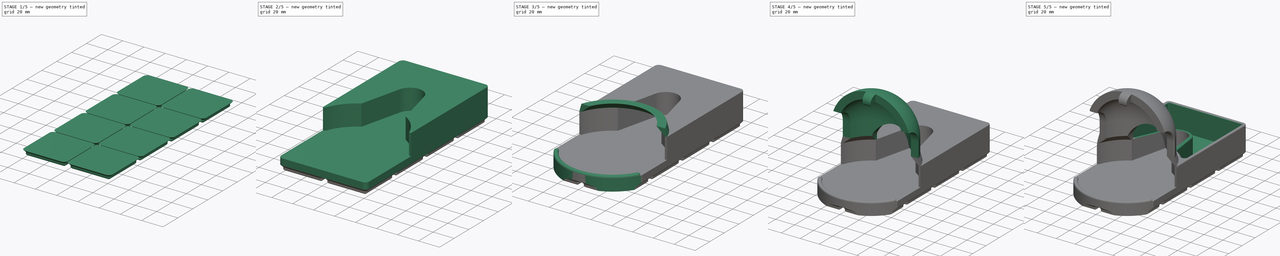
[diagram: build sequence overview — one tinted view per stage of 5, left to right]
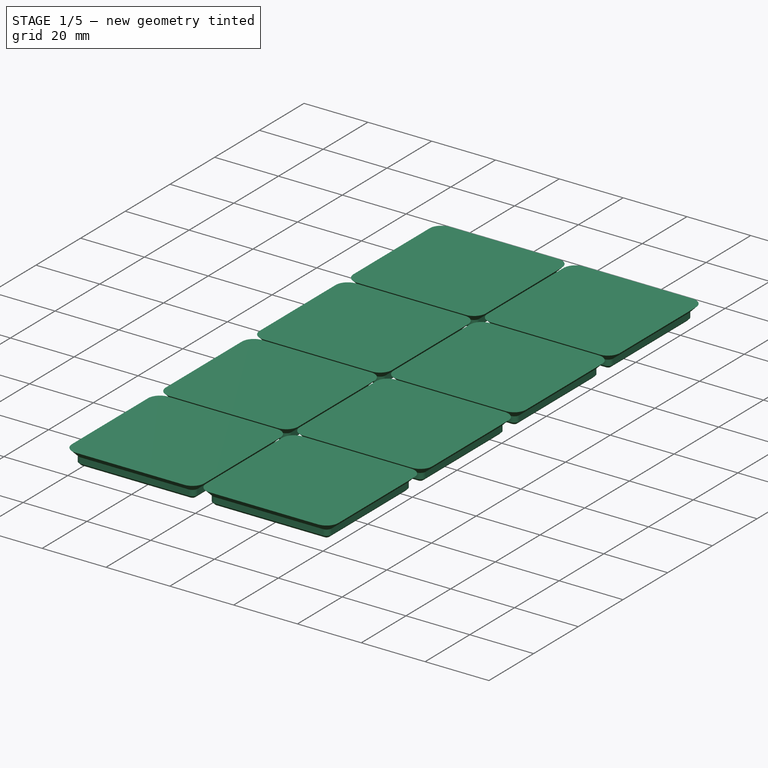
[diagram: stage 1 of 5 — iso view after this stage's code; geometry added in this stage tinted green]
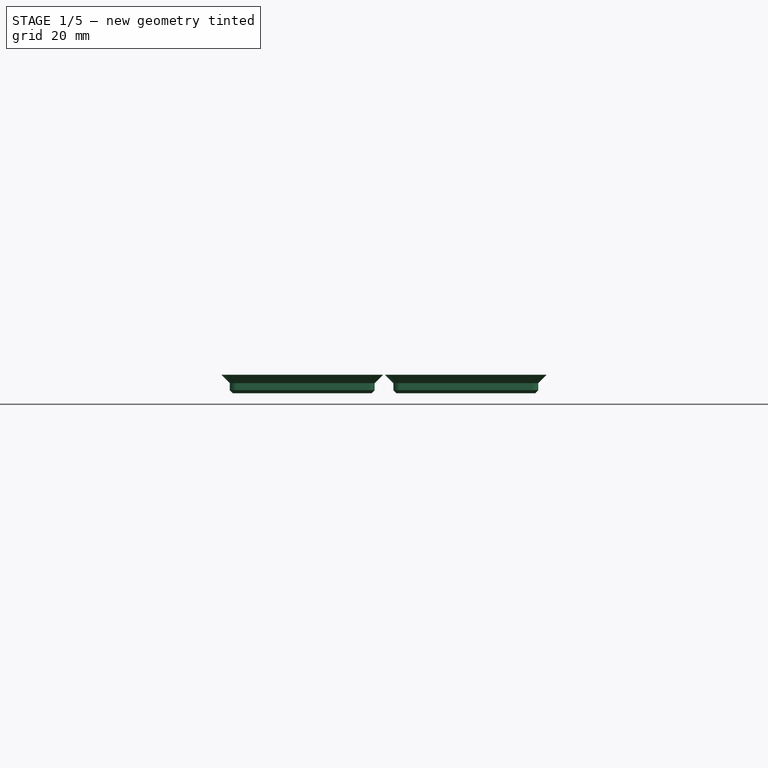
[diagram: stage 1 of 5 — front view after this stage's code; geometry added in this stage tinted green]
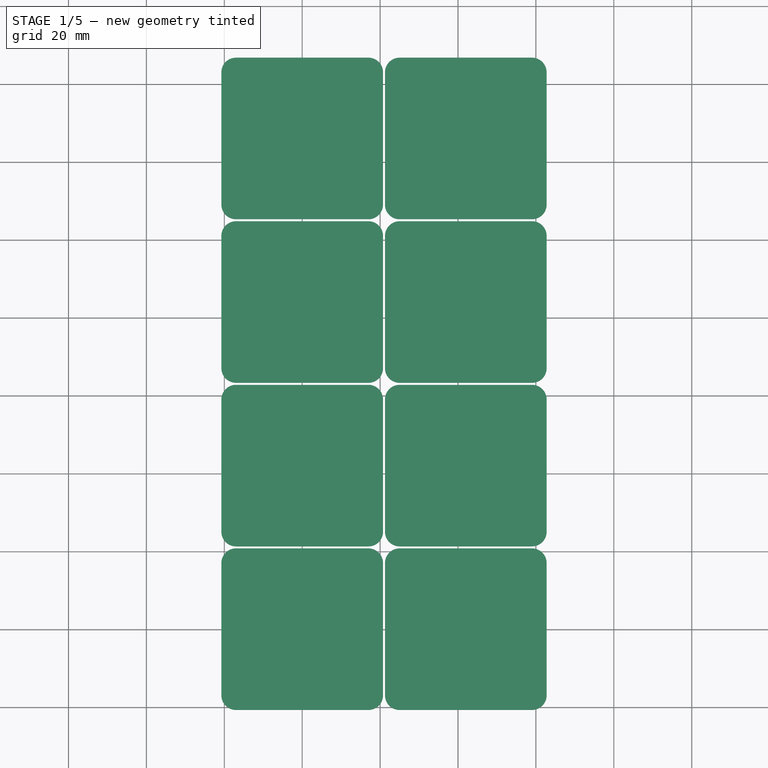
[diagram: stage 1 of 5 — top view after this stage's code; geometry added in this stage tinted green]
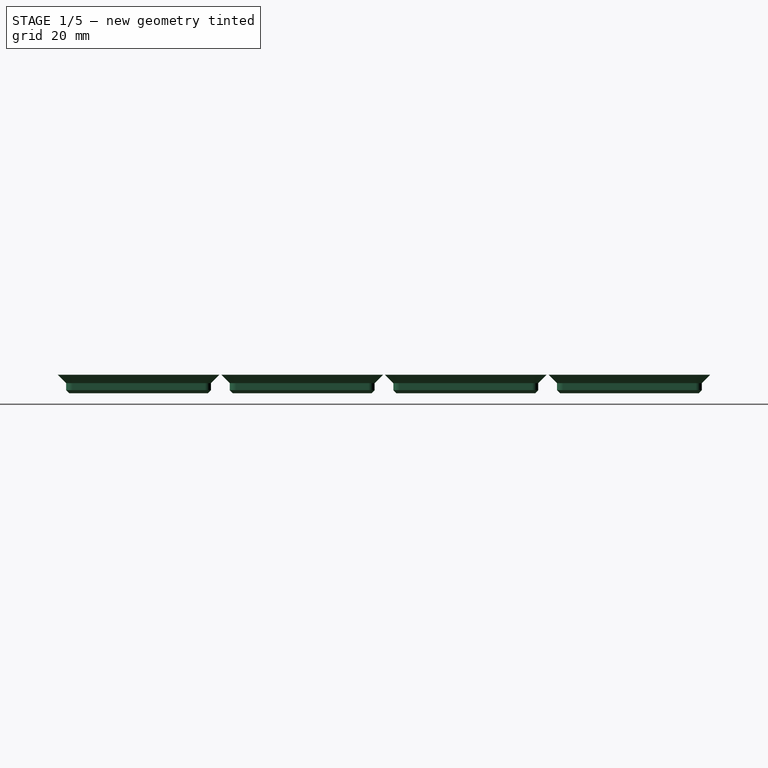
[diagram: stage 1 of 5 — right view after this stage's code; geometry added in this stage tinted green]
FCSTD DOCUMENT  (FreeCAD 1.1R20260223 (Git shallow))
Label: Gridfinity Hakko Iron stand
License: Creative Commons Attribution 4.0
LicenseURL: https://creativecommons.org/licenses/by/4.0/
objects: Sketcher::SketchObject×14, PartDesign::Pad×7, PartDesign::Pocket×4, Part::Part2DObjectPython×3, PartDesign::Fillet×3, Part::DatumPlane×2, PartDesign::Revolution×2, App::Point×1, PartDesign::FeaturePython×1, PartDesign::Hole×1, PartDesign::Chamfer×1, PartDesign::AdditiveLoft×1, PartDesign::Body×1
note: 91 computed .brp shape members not serialized (recipe doc carries the construction recipe); baked Part::Feature solids carry a one-line shape summary decoded from their .brp

FEATURE [App::Point] Origin002  label="Origin"
  Role = Origin
FEATURE [Sketcher::SketchObject] Sketch006
  ArcFitTolerance = 1e-06
  AttachmentSupport = -> [Origin]
  ExternalTypes = [0]
  FullyConstrained = true
  MakeInternals = false
  MapMode = 5
  expr: Constraints[6] = href(<<Tray>>.Depth) * 42 - 16
  expr: Constraints[8] = href(<<Tray>>.Width) * 42 - 16
  sketch-geometry (4):
    g0: Circle CenterX=13 CenterY=-13 CenterZ=0 NormalX=0 NormalY=0 NormalZ=1 AngleXU=0 Radius=3.25
    g1: Circle CenterX=-13 CenterY=139 CenterZ=0 NormalX=0 NormalY=0 NormalZ=1 AngleXU=0 Radius=3.25
    g2: Circle CenterX=55 CenterY=139 CenterZ=0 NormalX=0 NormalY=0 NormalZ=1 AngleXU=0 Radius=3.25
    g3: Circle CenterX=29 CenterY=-13 CenterZ=0 NormalX=0 NormalY=0 NormalZ=1 AngleXU=0 Radius=3.25
  constraints (12):
    c: Equal(g2,g1)
    c: Equal(g1,g0)
    c: Equal(g0,g3)
    c: Diameter(g0) = 6.5
    c: Horizontal(g1,g2)
    c: Horizontal(g0,g3)
    c: DistanceY(g0,g1) = 152
    c: DistanceY(g0,g-1) = 13
    c: DistanceX(g1,g2) = 68
    c: DistanceX(g1,g0) = 26
    c: DistanceX(g3,g2) = 26
    c: DistanceX(g1,g-1) = 13
FEATURE [Sketcher::SketchObject] Sketch
  ArcFitTolerance = 1e-06
  AttachmentSupport = -> [XY_Plane]
  ExternalTypes = [0]
  FullyConstrained = true
  MakeInternals = false
  MapMode = 5
  sketch-geometry (10):
    g0: LineSegment StartX=-17.8 StartY=17 StartZ=0 EndX=-17.8 EndY=-17 EndZ=0
    g1: LineSegment StartX=-17 StartY=-17.8 StartZ=0 EndX=17 EndY=-17.8 EndZ=0
    g2: LineSegment StartX=17.8 StartY=-17 StartZ=0 EndX=17.8 EndY=17 EndZ=0
    g3: LineSegment StartX=17 StartY=17.8 StartZ=0 EndX=-17 EndY=17.8 EndZ=0
    g4: ArcOfCircle CenterX=-17 CenterY=17 CenterZ=0 NormalX=0 NormalY=0 NormalZ=1 AngleXU=0 Radius=0.8 StartAngle=1.5708 EndAngle=3.14159
    g5: ArcOfCircle CenterX=-17 CenterY=-17 CenterZ=0 NormalX=0 NormalY=0 NormalZ=1 AngleXU=0 Radius=0.8 StartAngle=3.14159 EndAngle=4.71239
    g6: ArcOfCircle CenterX=17 CenterY=-17 CenterZ=0 NormalX=0 NormalY=0 NormalZ=1 AngleXU=0 Radius=0.8 StartAngle=4.71239 EndAngle=6.28319
    g7: ArcOfCircle CenterX=17 CenterY=17 CenterZ=0 NormalX=0 NormalY=0 NormalZ=1 AngleXU=0 Radius=0.8 StartAngle=9.76e-14 EndAngle=1.5708
    g8: GeomPoint [constr] X=-17.8 Y=17.8 Z=0
    g9: GeomPoint [constr] X=17.8 Y=-17.8 Z=0
  constraints (23):
    c: Tangent(g0,g4) = -1.5708
    c: Tangent(g0,g5) = -1.5708
    c: Tangent(g1,g5) = -1.5708
    c: Tangent(g1,g6) = -1.5708
    c: Tangent(g2,g6) = -1.5708
    c: Tangent(g2,g7) = -1.5708
    c: Tangent(g3,g7) = -1.5708
    c: Tangent(g3,g4) = -1.5708
    c: Vertical(g0)
    c: Vertical(g2)
    c: Horizontal(g1)
    c: Horizontal(g3)
    c: Equal(g4,g5)
    c: Equal(g5,g6)
    c: Equal(g6,g7)
    c: PointOnObject(g8,g0)
    c: PointOnObject(g8,g3)
    c: PointOnObject(g9,g1)
    c: PointOnObject(g9,g2)
    c: Symmetric(g8,g9,g-1)
    c: Equal(g3,g2)
    c: DistanceY(g9,g8) = 35.6
    c: Diameter(g5) = 1.6
FEATURE [PartDesign::Pad] Pad  label="Base pad 1"
  Direction = (0,0,1)
  Length = 0.8
  Length2 = 10
  Profile = -> Sketch
  ReferenceAxis = -> Sketch [N_Axis]
  SideType = 0
  Suppressed = false
  TaperAngle = 45
  Type = 0
  Type2 = 0
FEATURE [PartDesign::Pad] Pad001  label="Base pad 2"
  BaseFeature = -> Pad
  Direction = (0,0,1)
  Length = 1.8
  Length2 = 10
  Profile = -> Pad [Edge3,Edge24,Edge22,Edge19,Edge16,Edge13,Edge10,Edge7]
  SideType = 0
  Suppressed = false
  Type = 0
  Type2 = 0
FEATURE [PartDesign::Pad] Pad002  label="Base pad 3"
  BaseFeature = -> Pad001
  Direction = (0,0,1)
  Length = 2.15
  Length2 = 10
  Profile = -> Pad001 [Edge16,Edge31,Edge32,Edge33,Edge34,Edge35,Edge36,Edge29]
  SideType = 0
  Suppressed = false
  TaperAngle = 45
  Type = 0
  Type2 = 0
FEATURE [Sketcher::SketchObject] Sketch001
  ArcFitTolerance = 1e-06
  AttachmentSupport = -> [Pad002]
  ExternalTypes = [0]
  FullyConstrained = true
  MakeInternals = false
  MapMode = 5
  Placement = pos=(0,0,4.75) rot=(0,0,1;0rad)
  expr: Constraints[23] = href(<<Tray>>.Width) * 42
  expr: Constraints[24] = href(<<Tray>>.Depth) * 42
  sketch-geometry (8):
    g0: ArcOfCircle CenterX=-17 CenterY=-17 CenterZ=0 NormalX=0 NormalY=0 NormalZ=1 AngleXU=0 Radius=4 StartAngle=3.14159 EndAngle=4.71239
    g1: LineSegment StartX=-21 StartY=-17 StartZ=0 EndX=-21 EndY=143 EndZ=0
    g2: LineSegment StartX=-17 StartY=-21 StartZ=0 EndX=59 EndY=-21 EndZ=0
    g3: ArcOfCircle CenterX=-17 CenterY=143 CenterZ=0 NormalX=0 NormalY=0 NormalZ=1 AngleXU=0 Radius=4 StartAngle=1.5708 EndAngle=3.14159
    g4: ArcOfCircle CenterX=59 CenterY=-17 CenterZ=0 NormalX=0 NormalY=0 NormalZ=1 AngleXU=0 Radius=4 StartAngle=4.71239 EndAngle=6.28319
    g5: LineSegment StartX=-17 StartY=147 StartZ=0 EndX=59 EndY=147 EndZ=0
    g6: ArcOfCircle CenterX=59 CenterY=143 CenterZ=0 NormalX=0 NormalY=0 NormalZ=1 AngleXU=0 Radius=4 StartAngle=0 EndAngle=1.5708
    g7: LineSegment StartX=63 StartY=143 StartZ=0 EndX=63 EndY=-17 EndZ=0
  constraints (28):
    c: Vertical(g0,g0)
    c: Horizontal(g0,g0)
    c: Coincident(g1,g0)
    c: Vertical(g1)
    c: Coincident(g2,g0)
    c: Horizontal(g2)
    c: Coincident(g3,g1)
    c: Coincident(g4,g2)
    c: Vertical(g4,g2)
    c: Horizontal(g4,g4)
    c: Horizontal(g1,g3)
    c: Vertical(g3,g3)
    c: Equal(g0,g3)
    c: Equal(g0,g4)
    c: Coincident(g5,g3)
    c: Horizontal(g5)
    c: Vertical(g5,g2)
    c: Coincident(g6,g5)
    c: Vertical(g5,g6)
    c: Horizontal(g6,g6)
    c: Coincident(g7,g6)
    c: Coincident(g7,g4)
    c: Equal(g0,g6)
    c: DistanceX(g0,g4) = 84
    c: DistanceY(g2,g5) = 168
    c: DistanceX(g0,g-1) = 21
    c: DistanceY(g0,g-1) = 21
    c: Radius(g0) = 4
FEATURE [Part::Part2DObjectPython] LinearArray  label="LinearArrayX"  # Draft 2D object (typed FeaturePython)
  Alignment = 0
  AttacherType = Attacher::AttachEngine3D
  CellStart = A1
  Count = 2
  Dir = (1,0,0)
  DirIsDriven = true
  DistributionLaw = 0
  DrivenProperty = 1
  EndInclusive = true
  ExposePlacement = false
  GeneratorMode = 1
  Link = -> Pad002
  LinkSubelement = Edge6
  MarkerShape = 1
  MarkerSize = 5
  NumElements = 2
  OrientMode = 1
  Point = (-17,-17.8,0)
  PointIsDriven = true
  Reverse = false
  SpanEnd = 34
  SpanStart = 0
  Step = 42
  SubLink = -> Pad002 [Edge6]
  Type = lattice2LinearArray.LinearArray
  VSGVersion = 1
  Values = 0.0 | 42.0
  ValuesSource = 2
  isLattice = 1
  expr: Count = href(<<Tray>>.Width)
FEATURE [Part::Part2DObjectPython] LinearArray001  label="LinearArrayY"  # Draft 2D object (typed FeaturePython)
  Alignment = 0
  AttacherType = Attacher::AttachEngine3D
  CellStart = A1
  Count = 4
  Dir = (0,1,0)
  DirIsDriven = true
  DistributionLaw = 0
  DrivenProperty = 1
  EndInclusive = true
  ExposePlacement = false
  GeneratorMode = 1
  Link = -> Pad002
  LinkSubelement = Edge1
  MarkerShape = 1
  MarkerSize = 5
  NumElements = 4
  OrientMode = 1
  Point = (-17.8,-17,0)
  PointIsDriven = true
  Reverse = true
  SpanEnd = 34
  SpanStart = 0
  Step = 42
  SubLink = -> Pad002 [Edge1]
  Type = lattice2LinearArray.LinearArray
  VSGVersion = 1
  Values = 0.0 | 42.0 | 84.0 | 126.0
  ValuesSource = 2
  isLattice = 1
  expr: Count = href(<<Tray>>.Depth)
FEATURE [Part::Part2DObjectPython] Populate  label="Gridfinity array"  # Draft 2D object (typed FeaturePython)
  AttacherType = Attacher::AttachEngine3D
  Copying = 0
  ExposePlacement = false
  MarkerShape = 1
  MarkerSize = 5
  NumElements = 8
  Object = -> LinearArray
  OutputCompounding = 0
  PlacementsTo = -> LinearArray001
  Referencing = 1
  Type = lattice2PopulateCopies.LatticePopulateCopies
  isLattice = 1
FEATURE [PartDesign::FeaturePython] LatticePattern  label="Base array"  # WARN: FeaturePython — macro-defined, semantics opaque (R4)
  AllowBaseFeature = true
  BaseFeature = -> Pad002
  Debug = false
  FeaturesToCopy = -> [Pad002,Pad,Pad001]
  IgnoreUnsupported = false
  PlacementsTo = -> Populate
  Referencing = 1
  Selfintersections = false
  SignOverride = 0
  SkipFirstInBody = false
  Suppressed = false
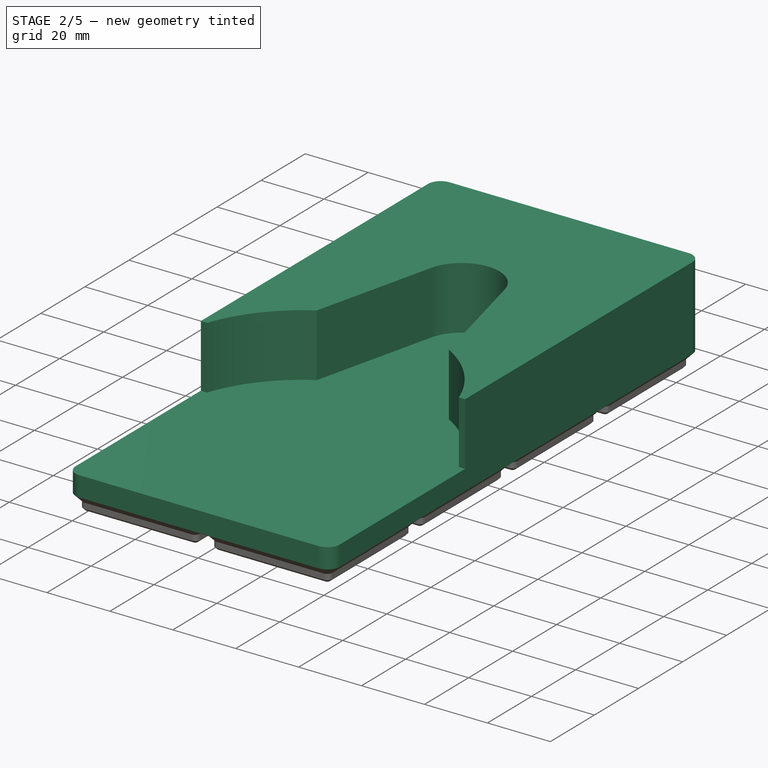
[diagram: stage 2 of 5 — iso view after this stage's code; geometry added in this stage tinted green]
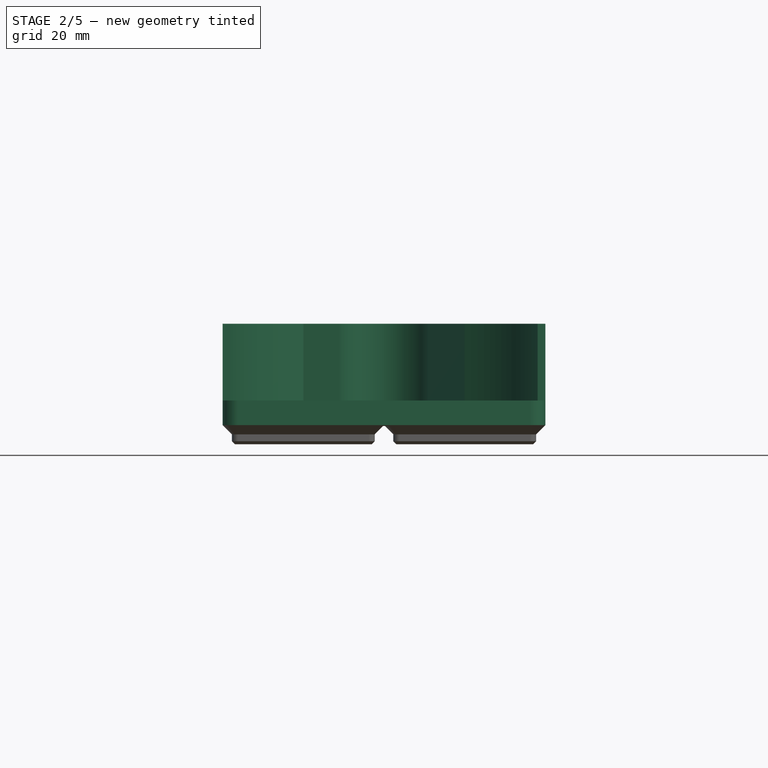
[diagram: stage 2 of 5 — front view after this stage's code; geometry added in this stage tinted green]
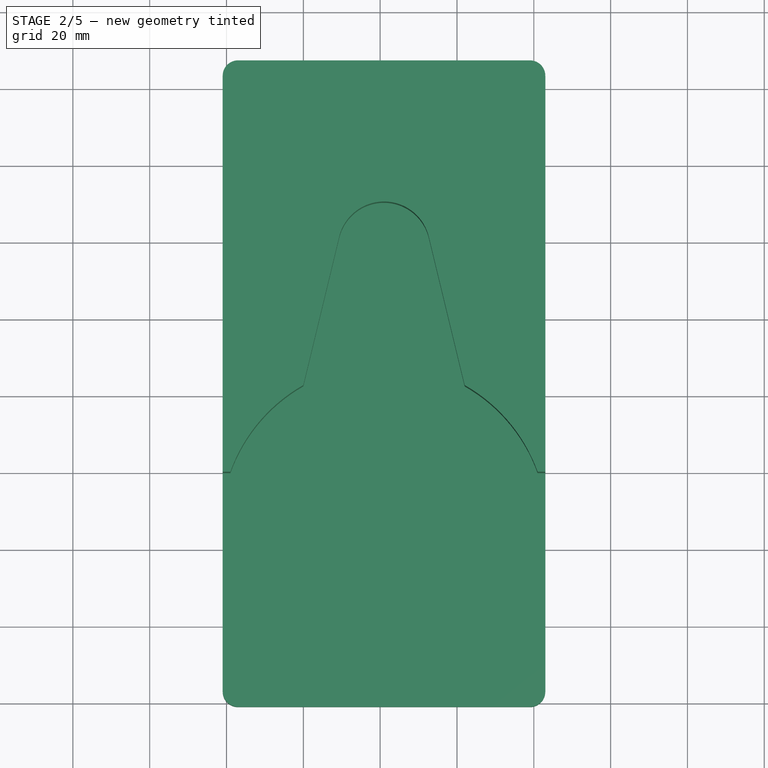
[diagram: stage 2 of 5 — top view after this stage's code; geometry added in this stage tinted green]
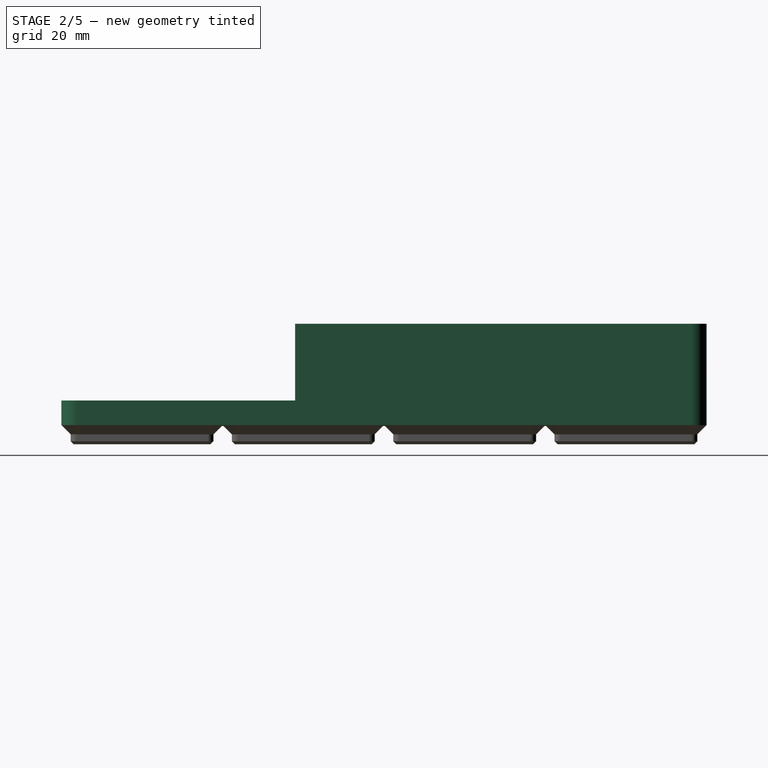
[diagram: stage 2 of 5 — right view after this stage's code; geometry added in this stage tinted green]
FEATURE [PartDesign::Pad] Pad003  label="Tray pad"
  BaseFeature = -> LatticePattern
  Direction = (0,0,1)
  Length = 6.65
  Length2 = 10
  Profile = -> Sketch001
  ReferenceAxis = -> Sketch001 [N_Axis]
  Refine = true
  SideType = 0
  Suppressed = false
  Type = 0
  Type2 = 0
  expr: Length = href(<<Tray>>.Height) * 7 - 0.35
FEATURE [PartDesign::Hole] Hole  label="Magnet holes"
  BaseFeature = -> Pad003
  BaseProfileType = 7
  CustomThreadClearance = 0
  Depth = 2
  DepthType = 0
  Diameter = 6.5
  DrillForDepth = false
  DrillPoint = 1
  DrillPointAngle = 90
  HoleCutCountersinkAngle = 90
  HoleCutCustomValues = false
  HoleCutDepth = 0
  HoleCutDiameter = 0
  HoleCutType = 0
  ModelThread = false
  Profile = -> Sketch006
  Refine = true
  Reversed = true
  Suppressed = false
  Tapered = false
  TaperedAngle = 90
  ThreadClass = 0
  ThreadDepth = 2
  ThreadDepthType = 0
  ThreadDiameter = 6.5
  ThreadDirection = 0
  ThreadFit = 0
  ThreadSize = 0
  ThreadType = 0
  Threaded = false
  UseCustomThreadClearance = false
FEATURE [PartDesign::Chamfer] Chamfer001  label="Base chamfer"
  Angle = 45
  Base = -> Hole [Edge14]
  BaseFeature = -> Hole
  ChamferType = 0
  FlipDirection = false
  Refine = true
  Size = 0.249
  Size2 = 1
  SupportTransform = false
  Suppressed = false
  UseAllEdges = false
FEATURE [Sketcher::SketchObject] Sketch007
  ArcFitTolerance = 1e-06
  AttachmentSupport = -> [Chamfer001]
  ExternalGeometry = -> [Chamfer001]
  ExternalTypes = [0,0,0,0]
  FullyConstrained = true
  MakeInternals = false
  MapMode = 5
  Placement = pos=(0,0,11.4) rot=(0,0,1;0rad)
  sketch-geometry (14):
    g0: Circle [constr] CenterX=21 CenterY=25.5 CenterZ=0 NormalX=0 NormalY=0 NormalZ=1 AngleXU=0 Radius=42.5
    g1: GeomPoint [constr] X=21 Y=-21 Z=0
    g2: LineSegment StartX=-3.6e-15 StartY=62.4493 StartZ=0 EndX=9.33597 EndY=101.07 EndZ=0
    g3: LineSegment StartX=42 StartY=62.4493 StartZ=0 EndX=32.664 EndY=101.07 EndZ=0
    g4: ArcOfCircle CenterX=21 CenterY=98.25 CenterZ=0 NormalX=0 NormalY=0 NormalZ=1 AngleXU=0 Radius=12 StartAngle=0.237187 EndAngle=2.90441
    g5: LineSegment [constr] StartX=21 StartY=98.25 StartZ=0 EndX=21 EndY=25.5 EndZ=0
    g6: LineSegment StartX=63 StartY=143 StartZ=0 EndX=63 EndY=39.8614 EndZ=0
    g7: LineSegment StartX=-21 StartY=143 StartZ=0 EndX=-21 EndY=39.8614 EndZ=0
    g8: ArcOfCircle CenterX=21 CenterY=25.5 CenterZ=0 NormalX=0 NormalY=0 NormalZ=1 AngleXU=0 Radius=42.5 StartAngle=2.08762 EndAngle=2.79689
    g9: ArcOfCircle CenterX=21 CenterY=25.5 CenterZ=0 NormalX=0 NormalY=0 NormalZ=1 AngleXU=0 Radius=42.5 StartAngle=0.344701 EndAngle=1.05398
    g10: GeomPoint [constr] X=21 Y=110.25 Z=0
    g11: GeomPoint [constr] X=21 Y=-17 Z=0
    g12: LineSegment StartX=-21 StartY=39.8614 StartZ=0 EndX=-19 EndY=39.8614 EndZ=0
    g13: LineSegment StartX=61 StartY=39.8614 StartZ=0 EndX=63 EndY=39.8614 EndZ=0
  constraints (35):
    c: Diameter(g0) = 85
    c: Symmetric(g-3,g-3,g1)
    c: Vertical(g0,g1)
    c: Distance(g1,g0) = 4
    c: PointOnObject(g2,g0)
    c: Tangent(g4,g2) = 1.5708
    c: Tangent(g4,g3) = -1.5708
    c: Vertical(g4,g0)
    c: Radius(g4) = 12
    c: DistanceX(g2,g3) = 42
    c: Coincident(g5,g4)
    c: Coincident(g5,g0)
    c: Symmetric(g2,g3,g5)
    c: Coincident(g6,g-5)
    c: Vertical(g6)
    c: Coincident(g7,g-6)
    c: Coincident(g9,g8)
    c: Coincident(g9,g3)
    c: Vertical(g7)
    c: PointOnObject(g10,g4)
    c: Vertical(g4,g10)
    c: PointOnObject(g11,g0)
    c: Vertical(g0,g11)
    c: DistanceY(g11,g10) = 127.25
    c: Coincident(g8,g2)
    c: PointOnObject(g8,g0)
    c: Horizontal(g7,g8)
    c: Coincident(g12,g7)
    c: Coincident(g12,g8)
    c: DistanceX(g12,g12) = 2
    c: PointOnObject(g9,g0)
    c: Coincident(g13,g9)
    c: Coincident(g13,g6)
    c: Horizontal(g13)
    c: Horizontal(g8,g9)
FEATURE [PartDesign::Pad] Pad004
  BaseFeature = -> Chamfer001
  Direction = (0,0,1)
  Length = 20
  Length2 = 10
  Profile = -> Sketch007
  ReferenceAxis = -> Sketch007 [N_Axis]
  SideType = 0
  Suppressed = false
  Type = 0
  Type2 = 0
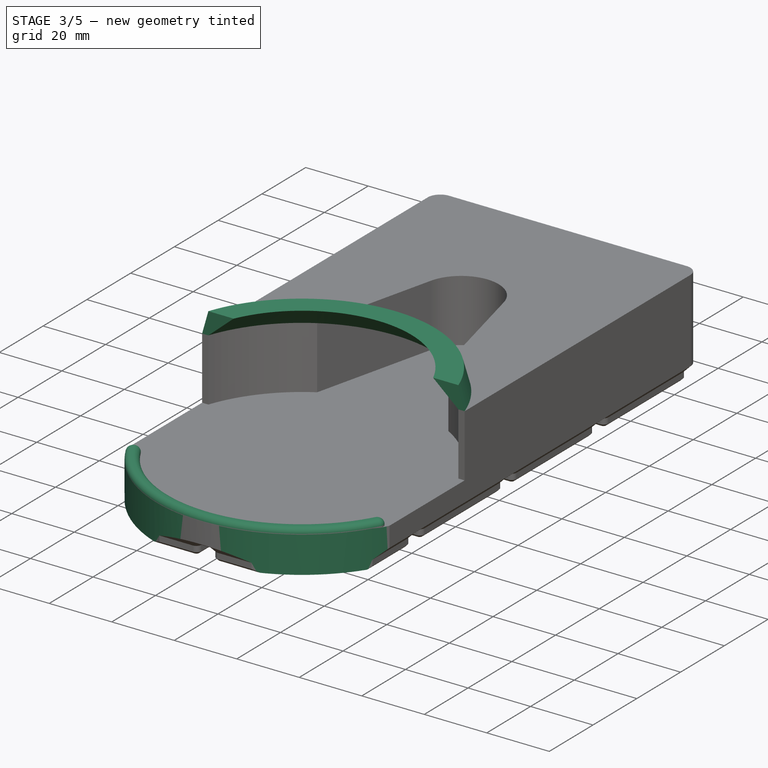
[diagram: stage 3 of 5 — iso view after this stage's code; geometry added in this stage tinted green]
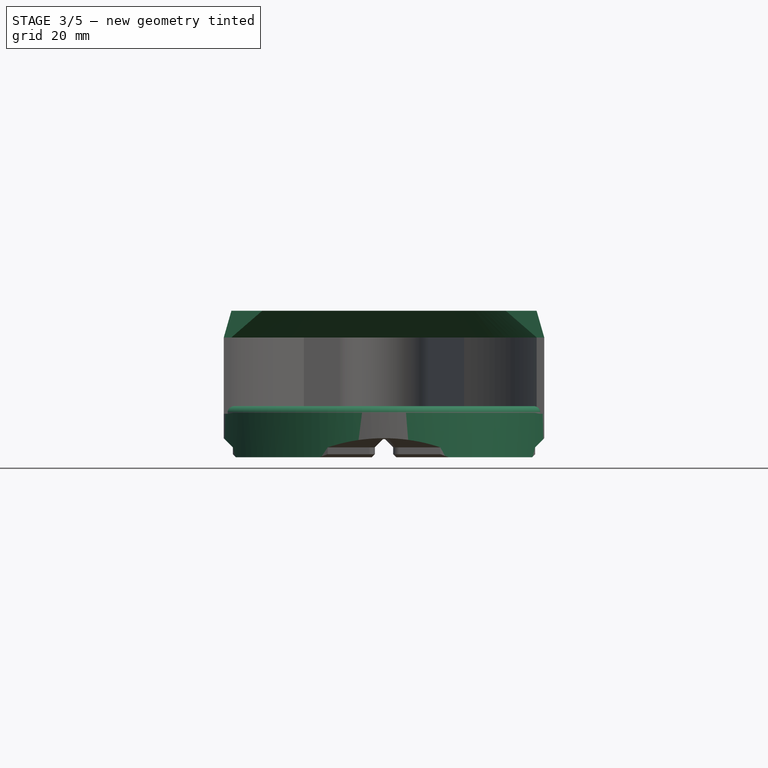
[diagram: stage 3 of 5 — front view after this stage's code; geometry added in this stage tinted green]
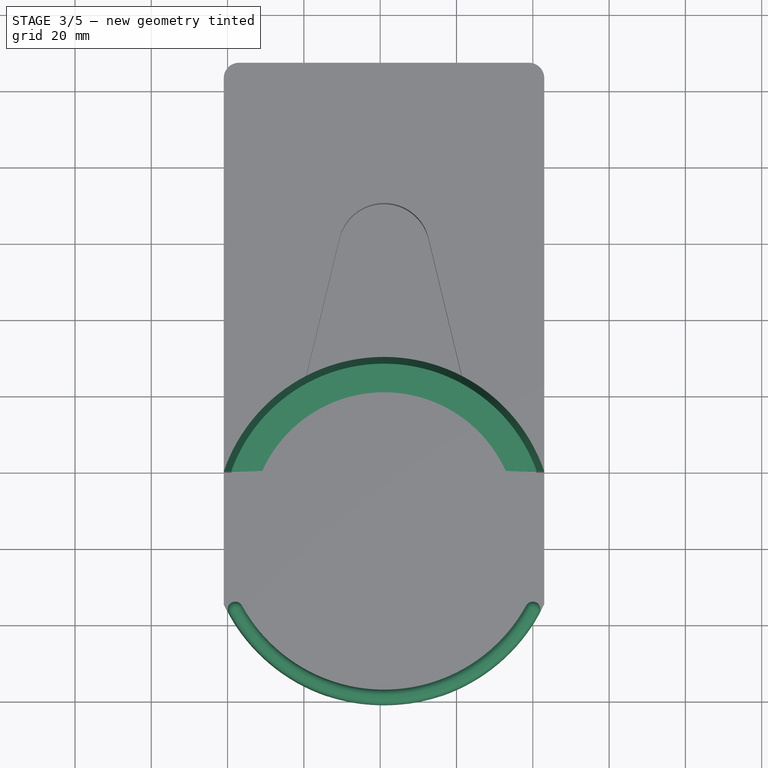
[diagram: stage 3 of 5 — top view after this stage's code; geometry added in this stage tinted green]
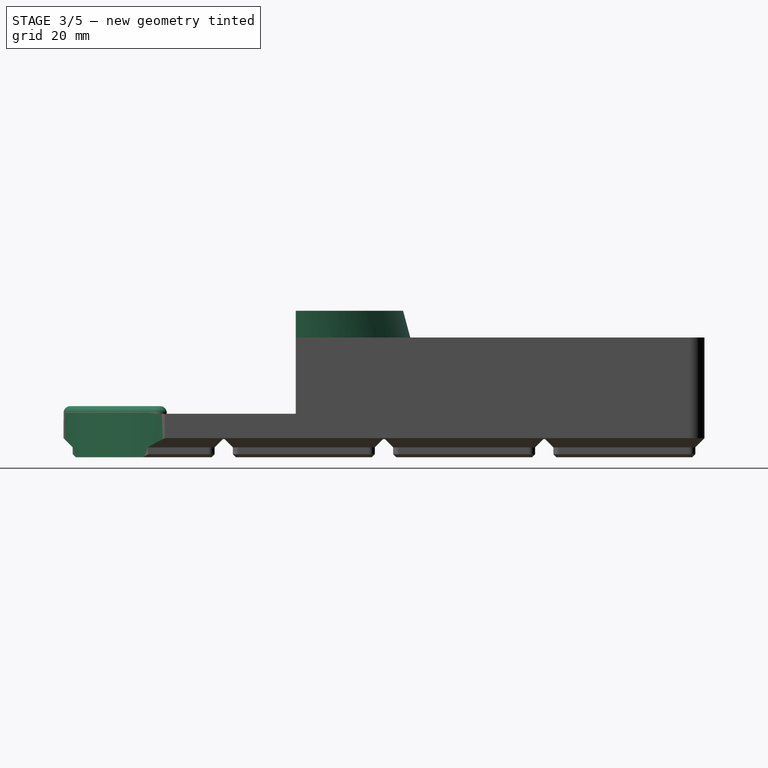
[diagram: stage 3 of 5 — right view after this stage's code; geometry added in this stage tinted green]
FEATURE [Sketcher::SketchObject] Sketch008
  ArcFitTolerance = 1e-06
  AttachmentSupport = -> [Pad004]
  ExternalGeometry = -> [Pad004]
  ExternalTypes = [0,0,0,0]
  FullyConstrained = true
  MakeInternals = false
  MapMode = 5
  Placement = pos=(0,0,11.4) rot=(0,0,1;0rad)
  sketch-geometry (5):
    g0: ArcOfCircle [constr] CenterX=21 CenterY=25.5 CenterZ=0 NormalX=0 NormalY=0 NormalZ=1 AngleXU=0 Radius=42.5 StartAngle=3.29514 EndAngle=6.12964
    g1: ArcOfCircle CenterX=21 CenterY=25.5 CenterZ=0 NormalX=0 NormalY=0 NormalZ=1 AngleXU=0 Radius=46.5 StartAngle=3.64404 EndAngle=5.78073
    g2: ArcOfCircle CenterX=-18 CenterY=4.06988 CenterZ=0 NormalX=0 NormalY=0 NormalZ=1 AngleXU=0 Radius=2 StartAngle=0.502452 EndAngle=3.64404
    g3: ArcOfCircle CenterX=60 CenterY=4.06988 CenterZ=0 NormalX=0 NormalY=0 NormalZ=1 AngleXU=0 Radius=2 StartAngle=5.78073 EndAngle=8.92233
    g4: ArcOfCircle CenterX=21 CenterY=25.5 CenterZ=0 NormalX=0 NormalY=0 NormalZ=1 AngleXU=0 Radius=42.5 StartAngle=3.64404 EndAngle=5.78073
  constraints (14):
    c: Coincident(g0,g-6)
    c: PointOnObject(g0,g-4)
    c: PointOnObject(g0,g-5)
    c: Equal(g-6,g0)
    c: Coincident(g1,g4)
    c: Tangent(g4,g3) = 1.5708
    c: Tangent(g4,g2) = 1.5708
    c: Tangent(g1,g3) = -1.5708
    c: Tangent(g1,g2) = -1.5708
    c: Radius(g3) = 2
    c: Coincident(g1,g0)
    c: PointOnObject(g2,g0)
    c: DistanceX(g-4,g2) = 3
    c: DistanceX(g3,g-5) = 3
FEATURE [PartDesign::Pad] Pad005
  BaseFeature = -> Pad004
  Direction = (0,0,1)
  Length = 2
  Length2 = 10
  Profile = -> Sketch008
  ReferenceAxis = -> Sketch008 [N_Axis]
  SideType = 0
  Suppressed = false
  Type = 0
  Type2 = 0
FEATURE [PartDesign::Fillet] Fillet
  Base = -> Pad005 [Edge534]
  BaseFeature = -> Pad005
  Radius = 1.75
  SupportTransform = false
  Suppressed = false
  UseAllEdges = false
FEATURE [Sketcher::SketchObject] Sketch009
  ArcFitTolerance = 1e-06
  AttachmentSupport = -> [Fillet]
  ExternalGeometry = -> [Fillet]
  ExternalTypes = [0,0,0,0]
  FullyConstrained = true
  MakeInternals = false
  MapMode = 5
  Placement = pos=(0,0,11.4) rot=(0,0,1;0rad)
  sketch-geometry (4):
    g0: ArcOfCircle CenterX=21 CenterY=25.5 CenterZ=0 NormalX=0 NormalY=0 NormalZ=1 AngleXU=0 Radius=46.5 StartAngle=3.58516 EndAngle=5.83962
    g1: LineSegment StartX=63 StartY=5.5438 StartZ=0 EndX=63 EndY=-21 EndZ=0
    g2: LineSegment StartX=63 StartY=-21 StartZ=0 EndX=-21 EndY=-21 EndZ=0
    g3: LineSegment StartX=-21 StartY=-21 StartZ=0 EndX=-21 EndY=5.5438 EndZ=0
  constraints (12):
    c: Coincident(g0,g-3)
    c: PointOnObject(g0,g-4)
    c: PointOnObject(g0,g-5)
    c: Equal(g0,g-3)
    c: Coincident(g0,g1)
    c: Coincident(g1,g2)
    c: Horizontal(g2)
    c: Coincident(g2,g3)
    c: Coincident(g3,g0)
    c: Vertical(g3)
    c: PointOnObject(g-6,g2)
    c: Vertical(g1)
FEATURE [PartDesign::Pocket] Pocket
  BaseFeature = -> Fillet
  Direction = (0,0,-1)
  Length = 5
  Length2 = 5
  Profile = -> Sketch009
  ReferenceAxis = -> Sketch009 [N_Axis]
  Refine = true
  SideType = 0
  Suppressed = false
  Type = 1
  Type2 = 0
FEATURE [Sketcher::SketchObject] Sketch010
  ArcFitTolerance = 1e-06
  AttachmentOffset = pos=(0,0,7) rot=(0,0,1;0rad)
  AttachmentSupport = -> [Pocket]
  ExternalGeometry = -> [Pocket]
  ExternalTypes = [0,0,0]
  FullyConstrained = true
  MakeInternals = false
  MapMode = 5
  Placement = pos=(0,0,38.4) rot=(0,0,1;0rad)
  sketch-geometry (6):
    g0: Circle [constr] CenterX=21 CenterY=25.5 CenterZ=0 NormalX=0 NormalY=0 NormalZ=1 AngleXU=0 Radius=35
    g1: ArcOfCircle CenterX=21 CenterY=25.5 CenterZ=0 NormalX=0 NormalY=0 NormalZ=1 AngleXU=0 Radius=35 StartAngle=0.422811 EndAngle=2.71878
    g2: LineSegment StartX=-10.9179 StartY=39.8614 StartZ=0 EndX=-19 EndY=39.8614 EndZ=0
    g3: LineSegment StartX=52.9179 StartY=39.8614 StartZ=0 EndX=61 EndY=39.8614 EndZ=0
    g4: ArcOfCircle CenterX=21 CenterY=25.5 CenterZ=0 NormalX=0 NormalY=0 NormalZ=1 AngleXU=0 Radius=42.5 StartAngle=0.344701 EndAngle=2.79689
    g5: LineSegment [constr] StartX=-19 StartY=25.5 StartZ=0 EndX=61 EndY=25.5 EndZ=0
  constraints (17):
    c: Diameter(g0) = 70
    c: Coincident(g0,g-3)
    c: Coincident(g1,g0)
    c: PointOnObject(g1,g0)
    c: Horizontal(g-4,g1)
    c: Horizontal(g1,g1)
    c: Coincident(g2,g1)
    c: Coincident(g2,g-4)
    c: Coincident(g3,g1)
    c: Coincident(g3,g-5)
    c: Coincident(g4,g0)
    c: Coincident(g4,g2)
    c: Horizontal(g4,g3)
    c: Horizontal(g5)
    c: PointOnObject(g0,g5)
    c: Vertical(g4,g5)
    c: Vertical(g2,g5)
FEATURE [Part::DatumPlane] DatumPlane  label="Back window plane"
  MapMode = 13
  Placement = pos=(14,62.4493,18.0667) rot=(0,0.707107,0.707107;3.14159rad)
FEATURE [Sketcher::SketchObject] Sketch011
  ArcFitTolerance = 1e-06
  AttachmentSupport = -> [DatumPlane]
  ExternalTypes = [0,0]
  FullyConstrained = true
  MakeInternals = false
  MapMode = 5
  Placement = pos=(14,62.4493,18.0667) rot=(0,0.707107,0.707107;3.14159rad)
  sketch-geometry (2):
    g0: ArcOfCircle CenterX=-7 CenterY=13.3333 CenterZ=0 NormalX=0 NormalY=0 NormalZ=1 AngleXU=0 Radius=21 StartAngle=4e-16 EndAngle=3.14159
    g1: LineSegment StartX=-28 StartY=13.3333 StartZ=0 EndX=14 EndY=13.3333 EndZ=0
  constraints (5):
    c: Coincident(g0,g-3)
    c: Coincident(g0,g-4)
    c: Symmetric(g0,g0,g0)
    c: Coincident(g1,g0)
    c: Coincident(g1,g0)
FEATURE [Sketcher::SketchObject] Sketch012
  ArcFitTolerance = 1e-06
  AttachmentSupport = -> [Pocket]
  ExternalGeometry = -> [Pocket]
  ExternalTypes = [0,0,0]
  FullyConstrained = true
  MakeInternals = false
  MapMode = 5
  Placement = pos=(0,0,31.4) rot=(0,0,1;0rad)
  sketch-geometry (2):
    g0: ArcOfCircle CenterX=21 CenterY=25.5 CenterZ=0 NormalX=0 NormalY=0 NormalZ=1 AngleXU=0 Radius=42.5 StartAngle=0.344701 EndAngle=2.79689
    g1: ArcOfCircle CenterX=21 CenterY=25.5 CenterZ=0 NormalX=0 NormalY=0 NormalZ=1 AngleXU=0 Radius=44.3875 StartAngle=0.329475 EndAngle=2.81212
  constraints (6):
    c: Coincident(g0,g-5)
    c: Coincident(g0,g-5)
    c: Coincident(g1,g0)
    c: Coincident(g1,g-3)
    c: Horizontal(g1,g-4)
    c: Horizontal(g0,g-4)
FEATURE [PartDesign::AdditiveLoft] AdditiveLoft
  BaseFeature = -> Pocket
  Closed = false
  Profile = -> Sketch012
  Ruled = false
  Sections = -> [Sketch010]
  Suppressed = false
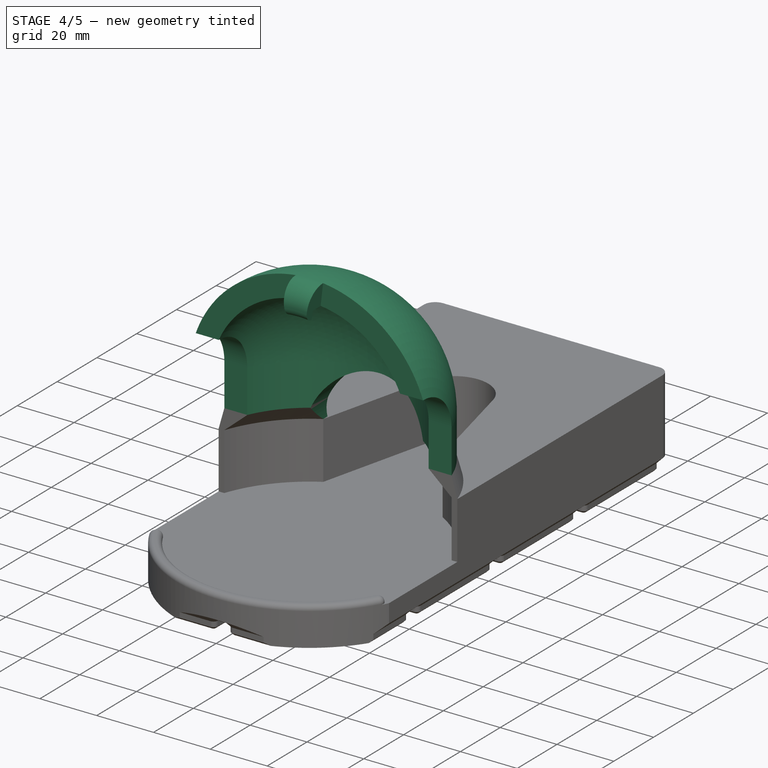
[diagram: stage 4 of 5 — iso view after this stage's code; geometry added in this stage tinted green]
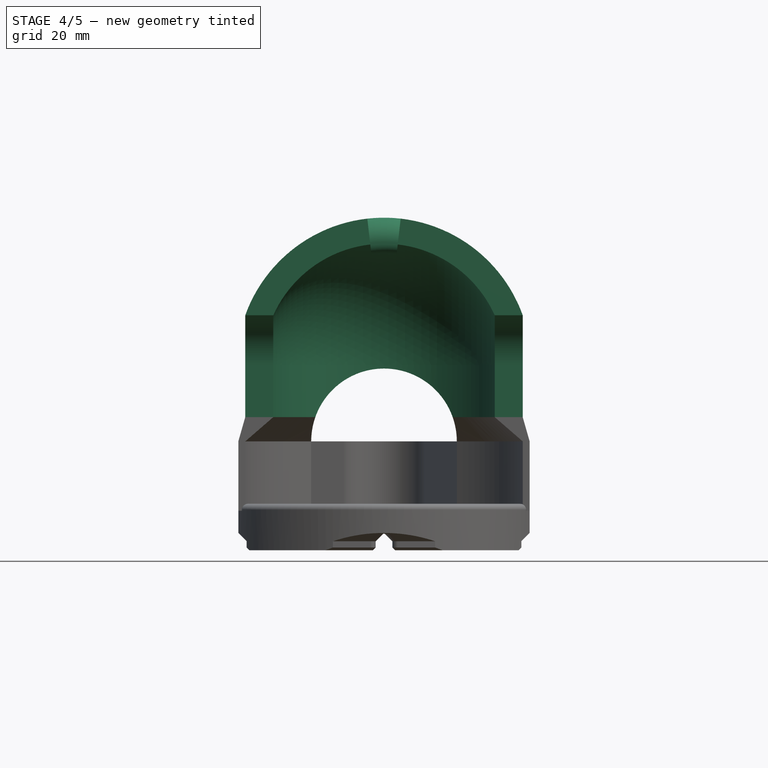
[diagram: stage 4 of 5 — front view after this stage's code; geometry added in this stage tinted green]
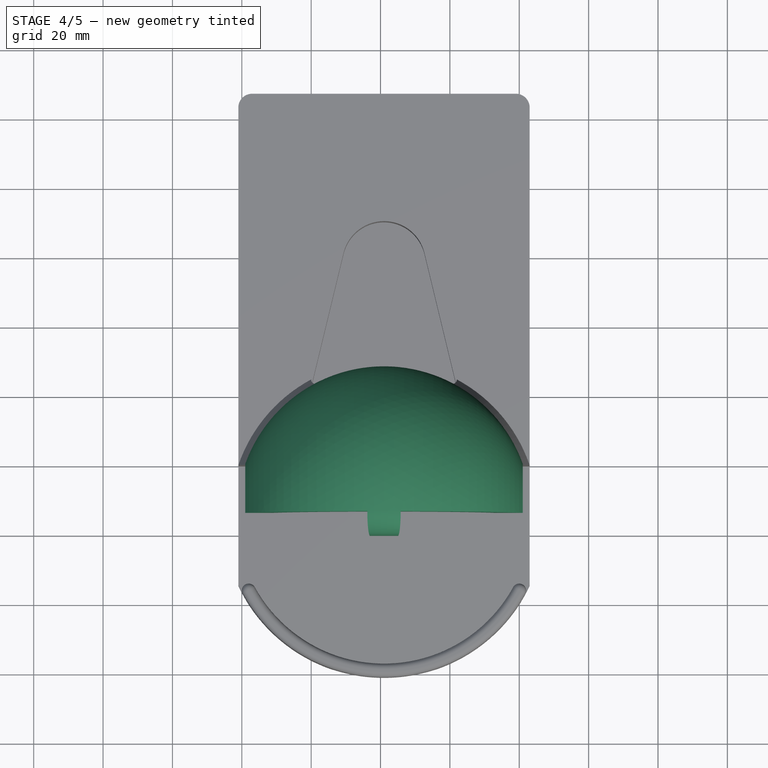
[diagram: stage 4 of 5 — top view after this stage's code; geometry added in this stage tinted green]
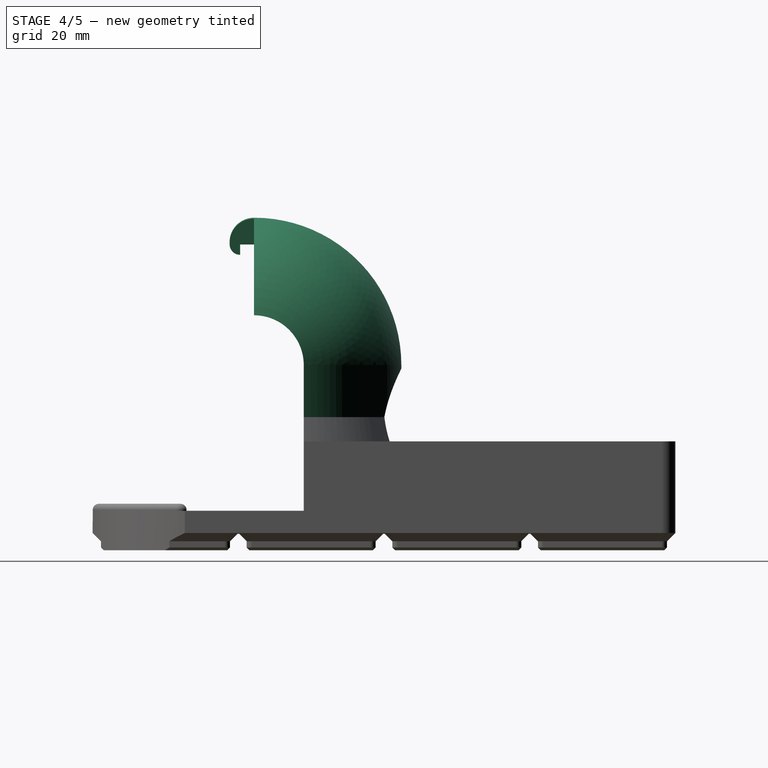
[diagram: stage 4 of 5 — right view after this stage's code; geometry added in this stage tinted green]
FEATURE [Part::DatumPlane] DatumPlane001  label="Symmetry plane"
  AttachmentSupport = -> [Pad004]
  MapMode = 45
  Placement = pos=(21,147,31.4) rot=(0.57735,0.57735,0.57735;2.0944rad)
FEATURE [PartDesign::Pad] Pad006
  BaseFeature = -> AdditiveLoft
  Direction = (0,0,1)
  Length = 15
  Length2 = 10
  Profile = -> Sketch010
  ReferenceAxis = -> Sketch010 [N_Axis]
  SideType = 0
  Suppressed = false
  Type = 0
  Type2 = 0
FEATURE [Sketcher::SketchObject] Sketch013
  ArcFitTolerance = 1e-06
  AttachmentSupport = -> [Pad006]
  ExternalGeometry = -> [AdditiveLoft]
  ExternalTypes = [0]
  FullyConstrained = true
  MakeInternals = false
  MapMode = 5
  Placement = pos=(0,0,53.4) rot=(0,0,1;0rad)
  sketch-geometry (2):
    g0: LineSegment StartX=-10.9179 StartY=25.5 StartZ=0 EndX=52.9179 EndY=25.5 EndZ=0
    g1: LineSegment StartX=21 StartY=25.5 StartZ=0 EndX=21 EndY=60.5 EndZ=0
  constraints (7):
    c: Horizontal(g0)
    c: PointOnObject(g-3,g0)
    c: Vertical(g-3,g0)
    c: Vertical(g-3,g0)
    c: Coincident(g1,g-3)
    c: PointOnObject(g1,g-3)
    c: Vertical(g1)
FEATURE [Sketcher::SketchObject] Sketch017
  ArcFitTolerance = 1e-06
  AttachmentSupport = -> [Sketch013]
  ExternalGeometry = -> [Pad006]
  ExternalTypes = [0,0,0,0]
  FullyConstrained = true
  MakeInternals = false
  MapMode = 2
  Placement = pos=(0,0,53.4) rot=(0,0,1;0rad)
FEATURE [PartDesign::Revolution] Revolution
  Angle = 90
  Angle2 = 0
  Axis = (1,0,0)
  Base = (-10.9179,25.5,53.4)
  BaseFeature = -> Pad006
  FuseOrder = 0
  Profile = -> Sketch017
  ReferenceAxis = -> Sketch013 [Edge1]
  Suppressed = false
  Type = 0
FEATURE [PartDesign::Pocket] Pocket001
  BaseFeature = -> Revolution
  Direction = (0,-1,2e-16)
  Length = 5
  Length2 = 5
  Profile = -> Sketch011
  ReferenceAxis = -> Sketch011 [N_Axis]
  Refine = true
  SideType = 2
  Suppressed = false
  Type = 1
  Type2 = 0
FEATURE [Sketcher::SketchObject] Sketch014
  ArcFitTolerance = 1e-06
  AttachmentSupport = -> [DatumPlane001]
  ExternalGeometry = -> [Pocket001]
  ExternalTypes = [0,0]
  FullyConstrained = true
  MakeInternals = false
  MapMode = 5
  Placement = pos=(21,147,31.4) rot=(0.57735,0.57735,0.57735;2.0944rad)
  sketch-geometry (5):
    g0: LineSegment StartX=-121.5 StartY=57 StartZ=0 EndX=-125.5 EndY=57 EndZ=0
    g1: LineSegment StartX=-125.5 StartY=57 StartZ=0 EndX=-125.5 EndY=54 EndZ=0
    g2: LineSegment StartX=-121.5 StartY=64.5 StartZ=0 EndX=-121.5 EndY=57 EndZ=0
    g3: ArcOfCircle CenterX=-121.5 CenterY=57.4833 CenterZ=0 NormalX=0 NormalY=0 NormalZ=1 AngleXU=0 Radius=7.01667 StartAngle=1.5708 EndAngle=3.21053
    g4: ArcOfCircle CenterX=-125.5 CenterY=57 CenterZ=0 NormalX=0 NormalY=0 NormalZ=1 AngleXU=0 Radius=3 StartAngle=3.14159 EndAngle=4.71239
  constraints (14):
    c: Horizontal(g0)
    c: Coincident(g0,g1)
    c: Vertical(g1)
    c: DistanceY(g1,g1) = 3
    c: Horizontal(g3,g0)
    c: Coincident(g2,g0)
    c: Coincident(g2,g-4)
    c: Coincident(g0,g-3)
    c: DistanceX(g0,g0) = 4
    c: Coincident(g3,g2)
    c: Vertical(g3,g2)
    c: Coincident(g4,g0)
    c: Coincident(g4,g3)
    c: Coincident(g4,g1)
FEATURE [PartDesign::Revolution] Revolution001
  Angle = 13
  Angle2 = 0
  Axis = (0,1,0)
  Base = (21,25.5,53.4)
  BaseFeature = -> Pocket001
  FuseOrder = 0
  Midplane = true
  Profile = -> Sketch014
  ReferenceAxis = -> Sketch013 [Edge2]
  Refine = true
  Suppressed = false
  Type = 0
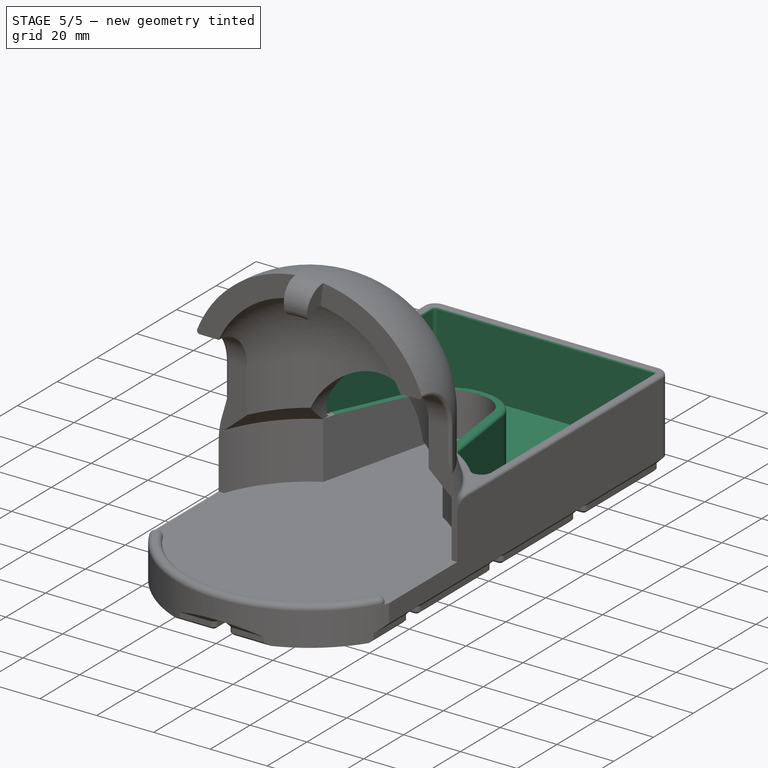
[diagram: stage 5 of 5 — iso view after this stage's code; geometry added in this stage tinted green]
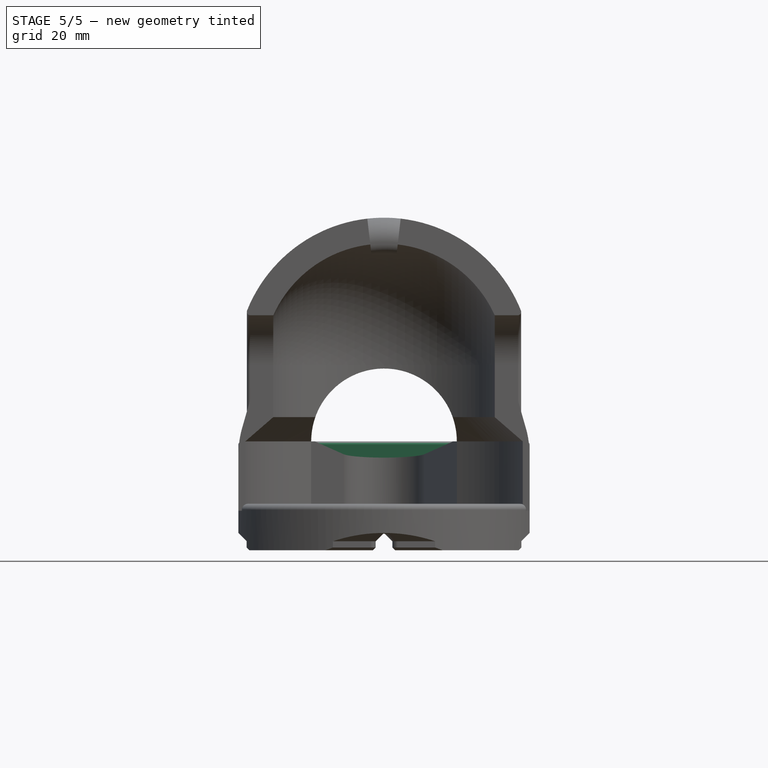
[diagram: stage 5 of 5 — front view after this stage's code; geometry added in this stage tinted green]
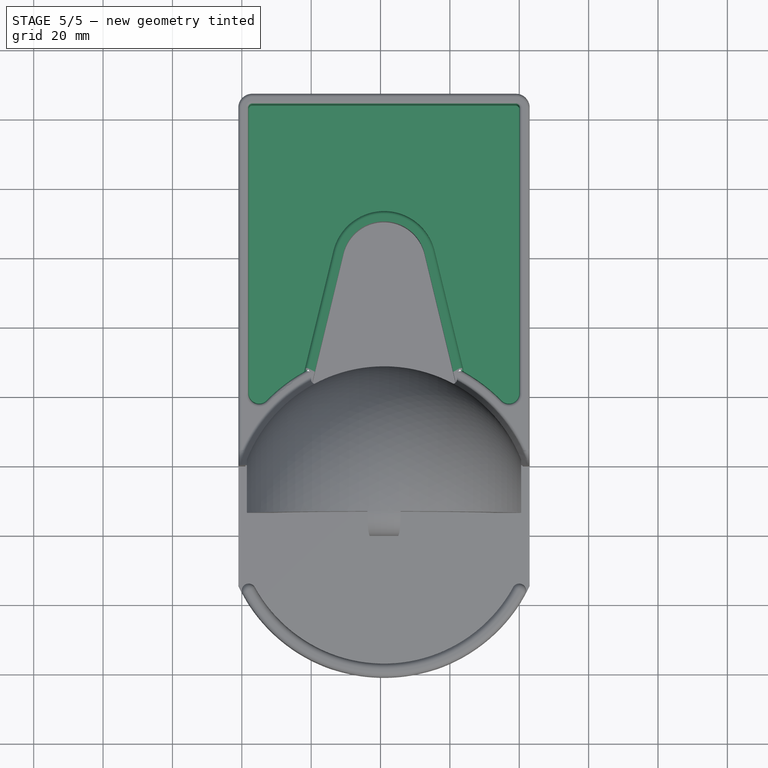
[diagram: stage 5 of 5 — top view after this stage's code; geometry added in this stage tinted green]
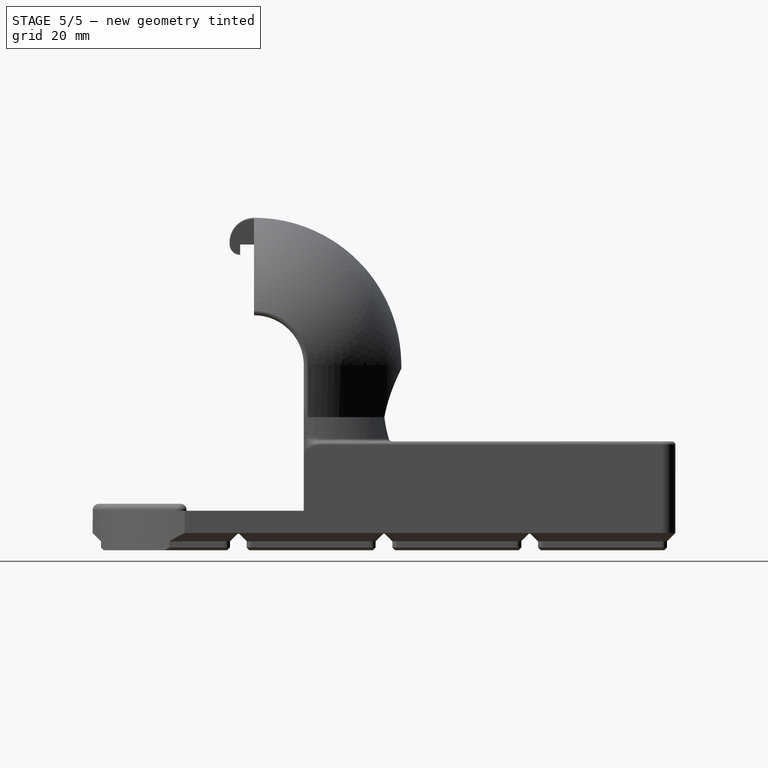
[diagram: stage 5 of 5 — right view after this stage's code; geometry added in this stage tinted green]
FEATURE [Sketcher::SketchObject] Sketch015
  ArcFitTolerance = 1e-06
  AttachmentSupport = -> [Revolution001]
  ExternalGeometry = -> [Revolution001]
  ExternalTypes = [0,0,0,0,0,0,0,0]
  FullyConstrained = true
  MakeInternals = false
  MapMode = 5
  Placement = pos=(0,0,31.4) rot=(0,0,1;0rad)
  sketch-geometry (14):
    g0: LineSegment StartX=-18 StartY=60.6286 StartZ=0 EndX=-18 EndY=143 EndZ=0
    g1: ArcOfCircle CenterX=-17 CenterY=143 CenterZ=0 NormalX=0 NormalY=0 NormalZ=1 AngleXU=0 Radius=1 StartAngle=1.5708 EndAngle=3.14159
    g2: LineSegment StartX=-17 StartY=144 StartZ=0 EndX=59 EndY=144 EndZ=0
    g3: ArcOfCircle CenterX=59 CenterY=143 CenterZ=0 NormalX=0 NormalY=0 NormalZ=1 AngleXU=0 Radius=1 StartAngle=1.7e-15 EndAngle=1.5708
    g4: LineSegment StartX=60 StartY=143 StartZ=0 EndX=60 EndY=60.6286 EndZ=0
    g5: ArcOfCircle CenterX=57 CenterY=60.6286 CenterZ=0 NormalX=0 NormalY=0 NormalZ=1 AngleXU=0 Radius=3 StartAngle=3.91474 EndAngle=6.28319
    g6: ArcOfCircle CenterX=21 CenterY=25.5 CenterZ=0 NormalX=0 NormalY=0 NormalZ=1 AngleXU=0 Radius=47.2993 StartAngle=0.773148 EndAngle=1.06222
    g7: LineSegment StartX=44.0315 StartY=66.8131 StartZ=0 EndX=35.58 EndY=101.775 EndZ=0
    g8: ArcOfCircle CenterX=21 CenterY=98.25 CenterZ=0 NormalX=0 NormalY=0 NormalZ=1 AngleXU=0 Radius=15 StartAngle=0.237187 EndAngle=2.90441
    g9: LineSegment StartX=6.41996 StartY=101.775 StartZ=0 EndX=-2.03152 EndY=66.8131 EndZ=0
    g10: ArcOfCircle CenterX=-15 CenterY=60.6286 CenterZ=0 NormalX=0 NormalY=0 NormalZ=1 AngleXU=0 Radius=3 StartAngle=3.14159 EndAngle=5.51004
    g11: LineSegment [constr] StartX=21 StartY=98.25 StartZ=0 EndX=9.33597 EndY=101.07 EndZ=0
    g12: LineSegment [constr] StartX=21 StartY=98.25 StartZ=0 EndX=32.664 EndY=101.07 EndZ=0
    g13: ArcOfCircle CenterX=21 CenterY=25.5 CenterZ=0 NormalX=0 NormalY=0 NormalZ=1 AngleXU=0 Radius=47.2993 StartAngle=2.07937 EndAngle=2.36844
  constraints (39):
    c: Vertical(g0)
    c: Coincident(g1,g2)
    c: Horizontal(g2)
    c: Coincident(g3,g4)
    c: Vertical(g4)
    c: Tangent(g4,g5) = 1.5708
    c: Tangent(g5,g6) = 1.5708
    c: Coincident(g6,g7)
    c: Tangent(g7,g8) = -1.5708
    c: Coincident(g8,g9)
    c: Coincident(g8,g-6)
    c: Coincident(g11,g8)
    c: Coincident(g11,g-6)
    c: Coincident(g12,g8)
    c: Coincident(g12,g-6)
    c: PointOnObject(g7,g12)
    c: PointOnObject(g8,g11)
    c: Parallel(g9,g-9)
    c: Coincident(g6,g-8)
    c: Tangent(g10,g0) = 1.5708
    c: Coincident(g13,g6)
    c: Coincident(g13,g9)
    c: Tangent(g13,g10) = 1.5708
    c: Equal(g10,g5)
    c: Equal(g13,g6)
    c: Horizontal(g10,g5)
    c: Vertical(g1,g1)
    c: Vertical(g2,g3)
    c: Horizontal(g3,g3)
    c: Horizontal(g0,g1)
    c: DistanceX(g-4,g0) = 3
    c: Coincident(g1,g0)
    c: Coincident(g3,g2)
    c: Equal(g1,g3)
    c: Radius(g1) = 1
    c: DistanceY(g1,g-3) = 3
    c: Distance(g12,g7) = 3
    c: Distance(g-7,g6) = 3
    c: Radius(g5) = 3
FEATURE [PartDesign::Pocket] Pocket002
  BaseFeature = -> Revolution001
  Direction = (0,0,-1)
  Length = 25
  Length2 = 5
  Profile = -> Sketch015
  ReferenceAxis = -> Sketch015 [N_Axis]
  SideType = 0
  Suppressed = false
  Type = 0
  Type2 = 0
FEATURE [Sketcher::SketchObject] Sketch016
  ArcFitTolerance = 1e-06
  AttachmentSupport = -> [DatumPlane001]
  ExternalGeometry = -> [Pocket002]
  ExternalTypes = [0,0,0,0]
  FullyConstrained = true
  MakeInternals = false
  MapMode = 5
  Placement = pos=(21,147,31.4) rot=(0.57735,0.57735,0.57735;2.0944rad)
  sketch-geometry (3):
    g0: LineSegment StartX=-33.75 StartY=-5 StartZ=0 EndX=-33.75 EndY=0 EndZ=0
    g1: LineSegment StartX=-33.75 StartY=-5 StartZ=0 EndX=-80.1869 EndY=-9e-16 EndZ=0
    g2: LineSegment StartX=-80.1869 StartY=-9e-16 StartZ=0 EndX=-33.75 EndY=0 EndZ=0
  constraints (7):
    c: Coincident(g0,g-3)
    c: Vertical(g0)
    c: DistanceY(g-4,g0) = 15
    c: Coincident(g0,g1)
    c: Coincident(g1,g-5)
    c: Coincident(g1,g2)
    c: Coincident(g2,g0)
FEATURE [PartDesign::Pocket] Pocket003
  BaseFeature = -> Pocket002
  Direction = (-1,0,0)
  Length = 63
  Length2 = 5
  Profile = -> Sketch016
  ReferenceAxis = -> Sketch016 [N_Axis]
  Refine = true
  SideType = 2
  Suppressed = false
  Type = 0
  Type2 = 0
FEATURE [PartDesign::Fillet] Fillet001
  Base = -> Pocket003 [Edge299,Edge309,Edge463,Edge301,Edge297]
  BaseFeature = -> Pocket003
  Radius = 1
  SupportTransform = false
  Suppressed = false
  UseAllEdges = false
FEATURE [PartDesign::Fillet] Fillet002
  Base = -> Fillet001 [Edge426,Edge424]
  BaseFeature = -> Fillet001
  Radius = 1
  SupportTransform = false
  Suppressed = false
  UseAllEdges = false
FEATURE [PartDesign::Body] Body  label="Tray"
  AllowCompound = true
  Depth = 4
  Group = -> [Sketch,Pad,Pad001,Pad002,LinearArray,LinearArray001,Populate,LatticePattern,Sketch001,Pad003,Sketch006,Hole,Chamfer001,Sketch007,Pad004,Sketch008,Pad005,Fillet,Sketch009,Pocket,Sketch010,Sketch012,DatumPlane,Sketch011,AdditiveLoft,Pad006,Sketch013,Sketch017,Revolution,Pocket001,DatumPlane001,Sketch014,Revolution001,Sketch015,Pocket002,Sketch016,Pocket003,Fillet001,Fillet002]
  Height = 1
  Origin = -> Origin
  Placement = pos=(0,0,6.534) rot=(0,0,1;0rad)
  Tip = -> Fillet002
  Width = 2
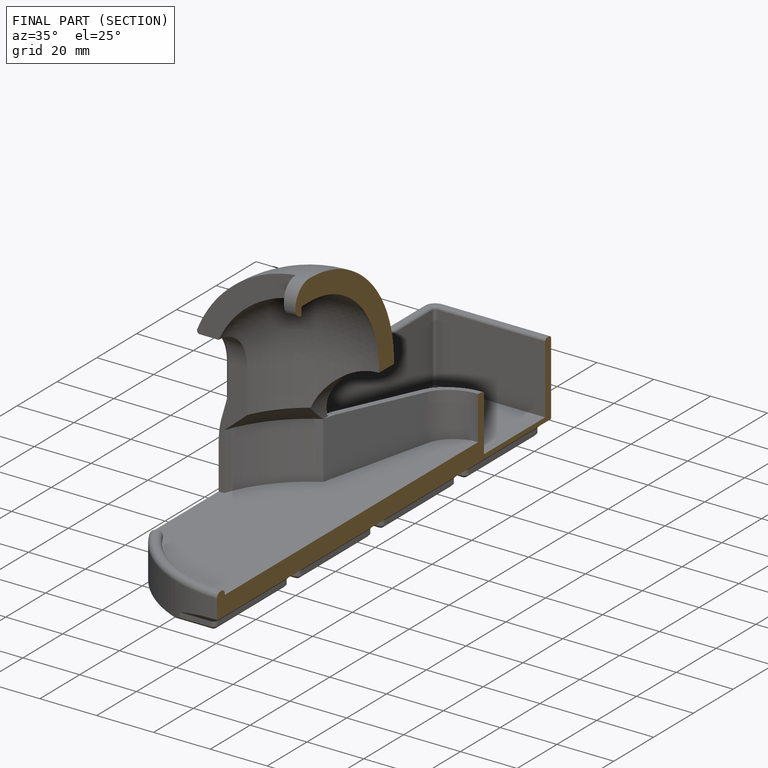
[diagram: finished part — half-section view (interior)]
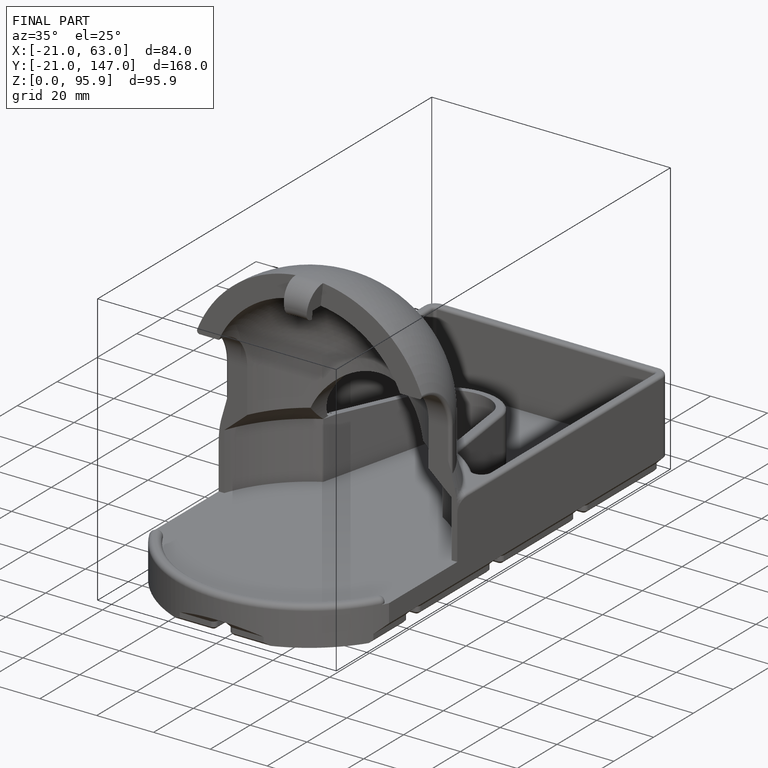
[diagram: finished part — iso view with bounding-box wireframe]
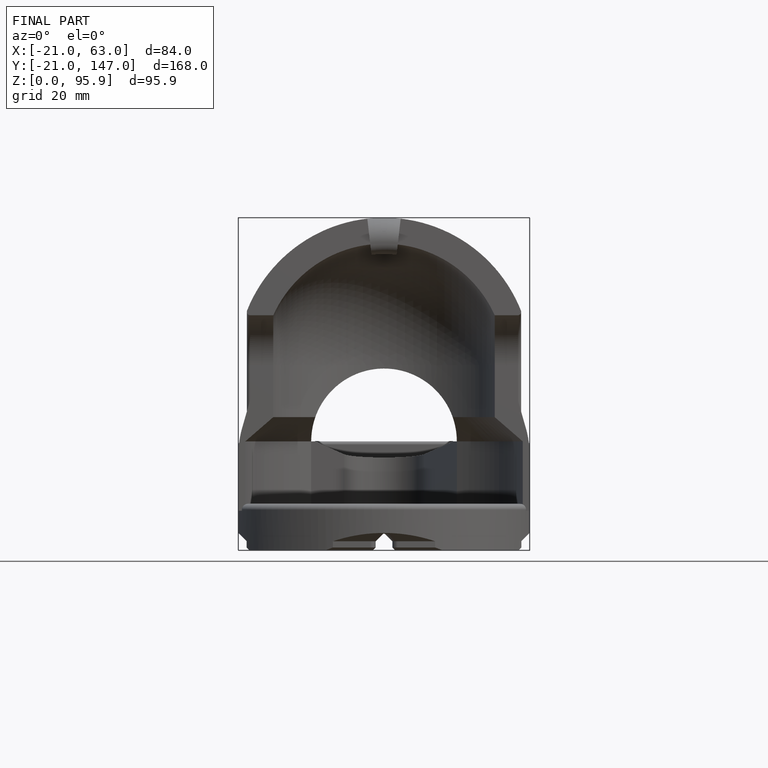
[diagram: finished part — front view with bounding-box wireframe]
